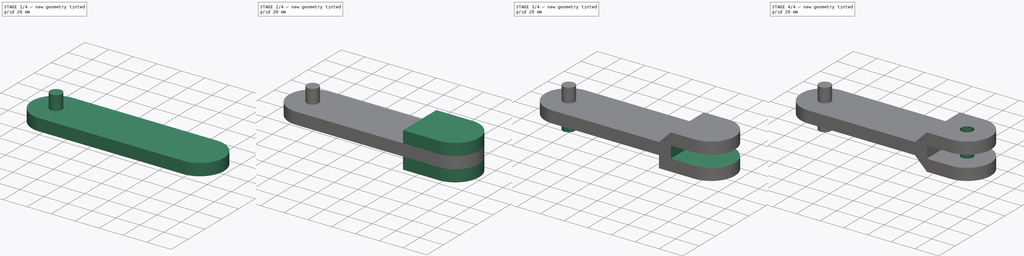
[diagram: build sequence overview — one tinted view per stage of 4, left to right]
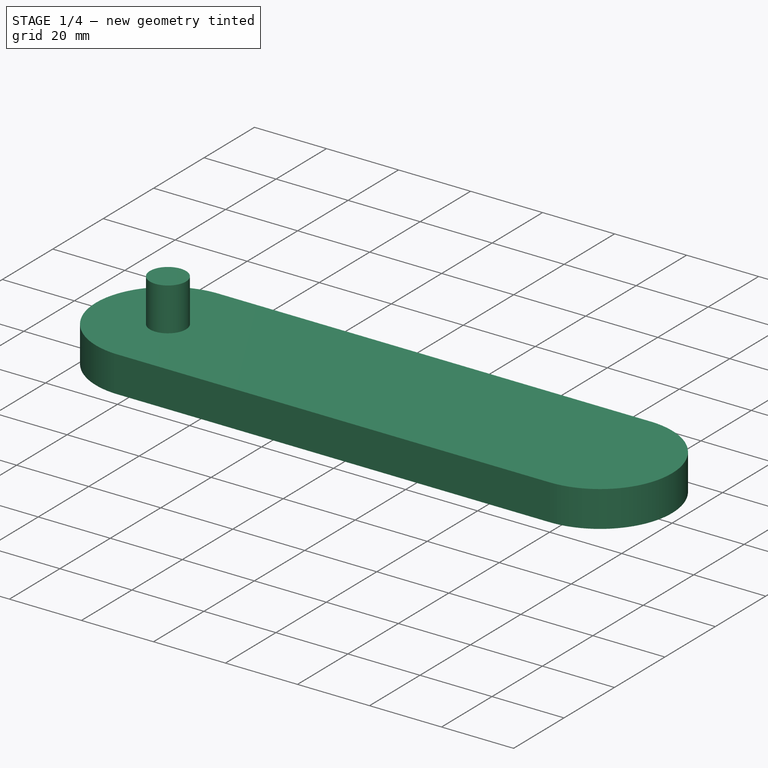
[diagram: stage 1 of 4 — iso view after this stage's code; geometry added in this stage tinted green]
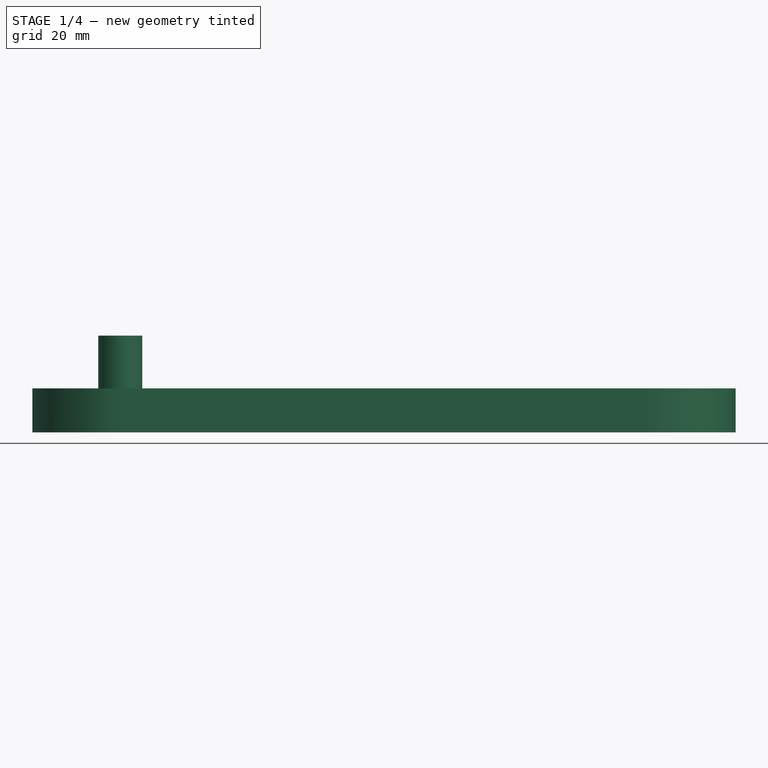
[diagram: stage 1 of 4 — front view after this stage's code; geometry added in this stage tinted green]
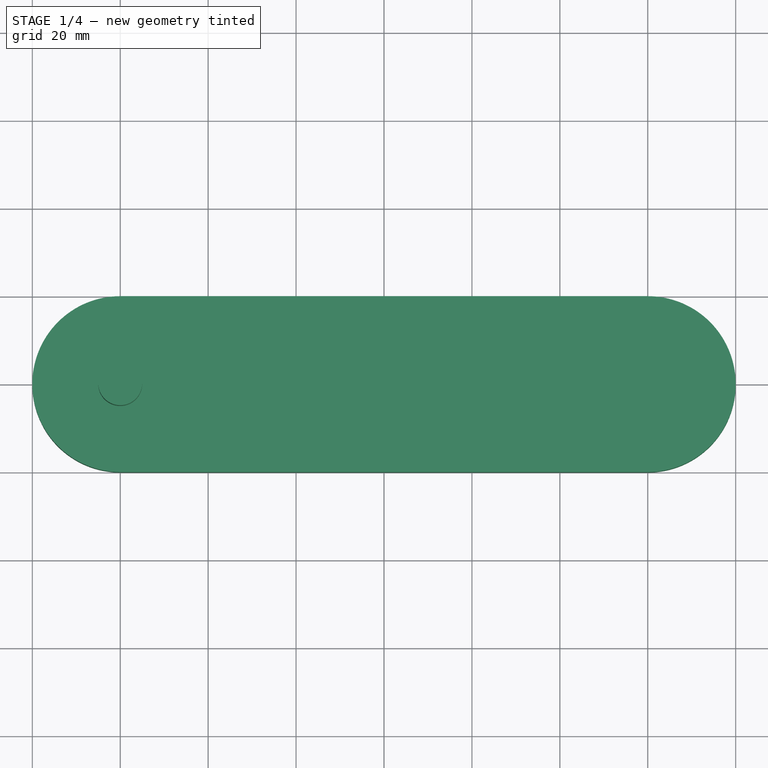
[diagram: stage 1 of 4 — top view after this stage's code; geometry added in this stage tinted green]
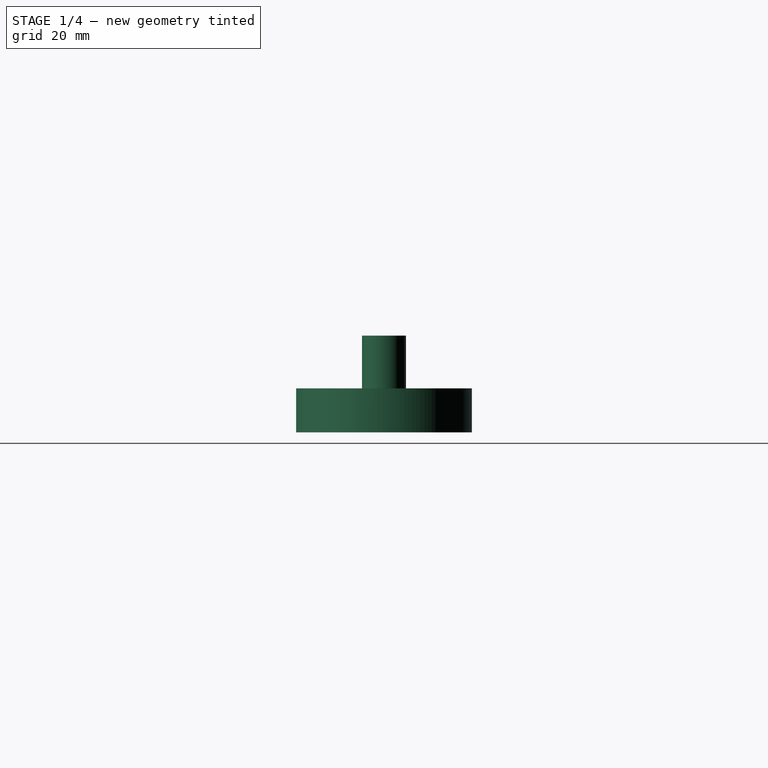
[diagram: stage 1 of 4 — right view after this stage's code; geometry added in this stage tinted green]
FCSTD DOCUMENT  (FreeCAD 0.18.4R)
Label: link_2
License: All rights reserved
LicenseURL: http://en.wikipedia.org/wiki/All_rights_reserved
objects: Sketcher::SketchObject×6, PartDesign::Pad×3, PartDesign::Mirrored×3, PartDesign::Pocket×3, PartDesign::Body×1
note: 22 computed .brp shape members not serialized (recipe doc carries the construction recipe); baked Part::Feature solids carry a one-line shape summary decoded from their .brp

FEATURE [Sketcher::SketchObject] Sketch
  MapMode = 5
  Support = -> [XY_Plane]
  sketch-geometry (4):
    g0: ArcOfCircle CenterX=0 CenterY=0 CenterZ=0 NormalX=0 NormalY=0 NormalZ=1 AngleXU=0 Radius=20 StartAngle=1.5708 EndAngle=4.71239
    g1: ArcOfCircle CenterX=120 CenterY=0 CenterZ=0 NormalX=0 NormalY=0 NormalZ=1 AngleXU=0 Radius=20 StartAngle=4.71239 EndAngle=7.85398
    g2: LineSegment StartX=1.2e-15 StartY=20 StartZ=0 EndX=120 EndY=20 EndZ=0
    g3: LineSegment StartX=-3.7e-15 StartY=-20 StartZ=0 EndX=120 EndY=-20 EndZ=0
  constraints (13):
    c: Radius(g0) = 20
    c: DistanceX(g0,g-1) = 0
    c: DistanceX(g-1,g0) = 0
    c: Coincident(g0,g-1)
    c: DistanceY(g0,g1) = 0
    c: DistanceX(g0,g1) = 120
    c: Radius(g1) = 20
    c: DistanceX(g1,g1) = 0
    c: DistanceY(g1,g1) = 40
    c: Coincident(g0,g2)
    c: Coincident(g2,g1)
    c: Coincident(g3,g1)
    c: Coincident(g3,g0)
FEATURE [PartDesign::Pad] Pad
  Length = 10
  Length2 = 100
  Midplane = true
  Profile = -> Sketch
  Type = 0
FEATURE [Sketcher::SketchObject] Sketch001
  MapMode = 5
  Placement = pos=(0,0,5) rot=(0,0,1;0rad)
  Support = -> [Pad]
  sketch-geometry (1):
    g0: Circle CenterX=0 CenterY=0 CenterZ=0 NormalX=0 NormalY=0 NormalZ=1 AngleXU=0 Radius=5
  constraints (2):
    c: Coincident(g0,g-1)
    c: Radius(g0) = 5
FEATURE [PartDesign::Pad] Pad001
  BaseFeature = -> Pad
  Length = 12
  Length2 = 100
  Profile = -> Sketch001
  Type = 0
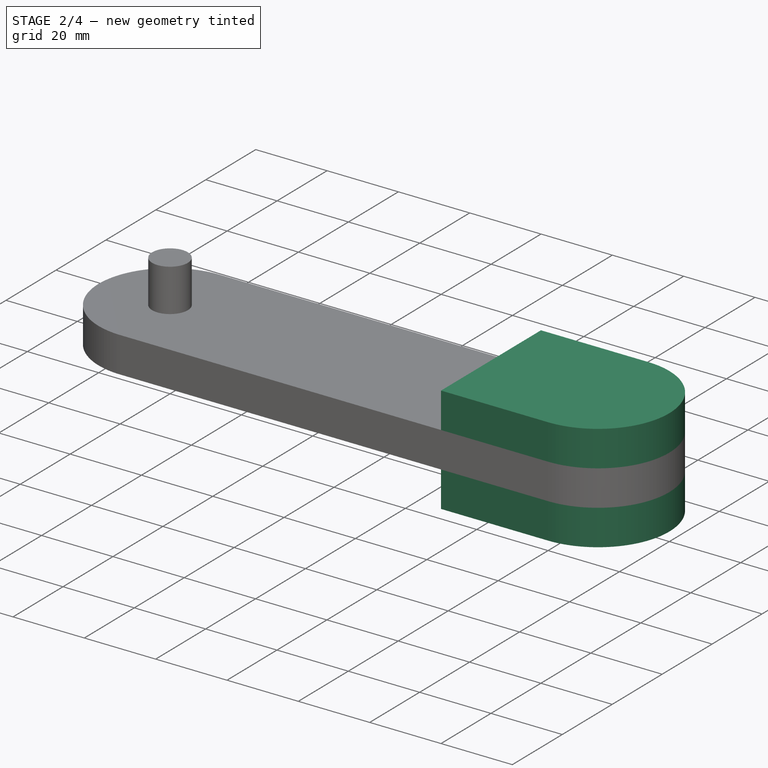
[diagram: stage 2 of 4 — iso view after this stage's code; geometry added in this stage tinted green]
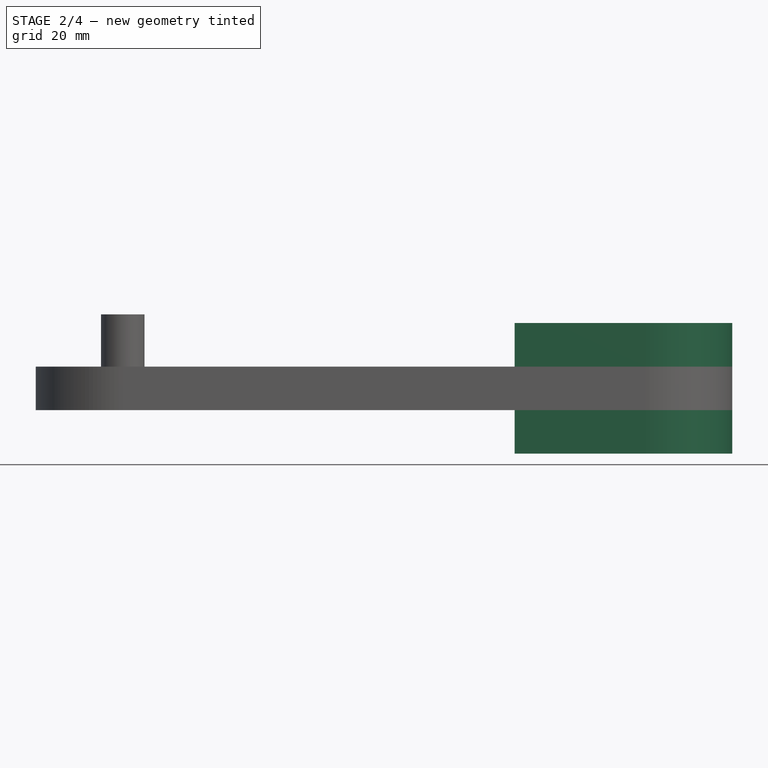
[diagram: stage 2 of 4 — front view after this stage's code; geometry added in this stage tinted green]
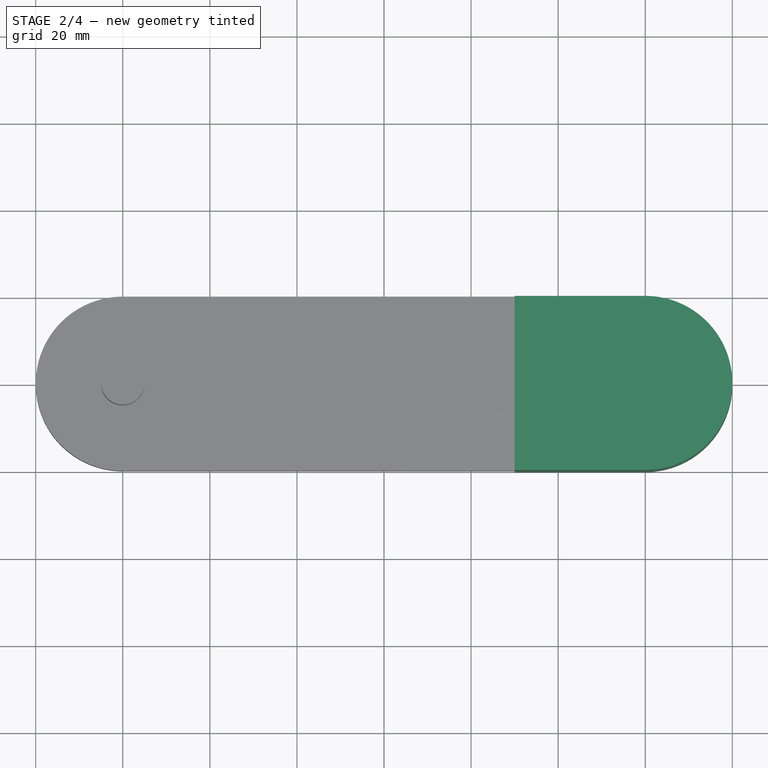
[diagram: stage 2 of 4 — top view after this stage's code; geometry added in this stage tinted green]
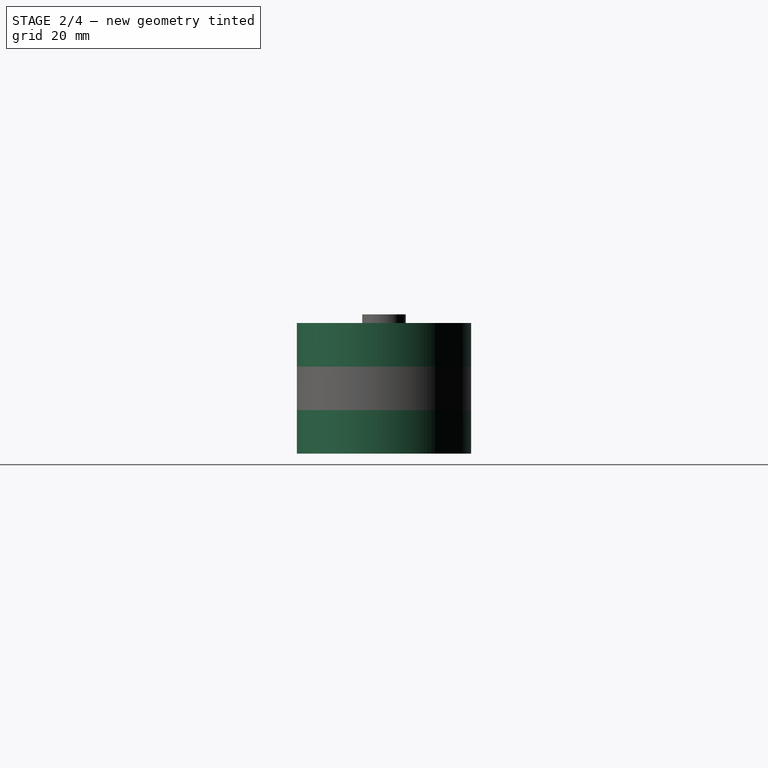
[diagram: stage 2 of 4 — right view after this stage's code; geometry added in this stage tinted green]
FEATURE [Sketcher::SketchObject] Sketch002
  MapMode = 5
  Placement = pos=(0,0,5) rot=(0,0,1;0rad)
  Support = -> [Pad001]
  sketch-geometry (4):
    g0: LineSegment StartX=90 StartY=20 StartZ=0 EndX=120 EndY=20 EndZ=0
    g1: LineSegment StartX=120 StartY=-20 StartZ=0 EndX=90 EndY=-20 EndZ=0
    g2: LineSegment StartX=90 StartY=-20 StartZ=0 EndX=90 EndY=20 EndZ=0
    g3: ArcOfCircle CenterX=120 CenterY=0 CenterZ=0 NormalX=0 NormalY=0 NormalZ=1 AngleXU=0 Radius=20 StartAngle=4.71239 EndAngle=7.85398
  constraints (13):
    c: Coincident(g1,g2)
    c: Coincident(g2,g0)
    c: Horizontal(g0)
    c: Horizontal(g1)
    c: Vertical(g2)
    c: DistanceY(g1,g0) = 40
    c: Radius(g3) = 20
    c: Coincident(g3,g1)
    c: Coincident(g0,g3)
    c: DistanceX(g0,g3) = 30
    c: DistanceX(g-1,g3) = 120
    c: DistanceY(g3,g-1) = 0
    c: DistanceY(g3,g0) = 20
FEATURE [PartDesign::Pad] Pad002
  BaseFeature = -> Pad001
  Length = 10
  Length2 = 100
  Profile = -> Sketch002
  Type = 0
FEATURE [PartDesign::Mirrored] Mirrored
  BaseFeature = -> Pad002
  MirrorPlane = -> XY_Plane
  Originals = -> [Pad002]
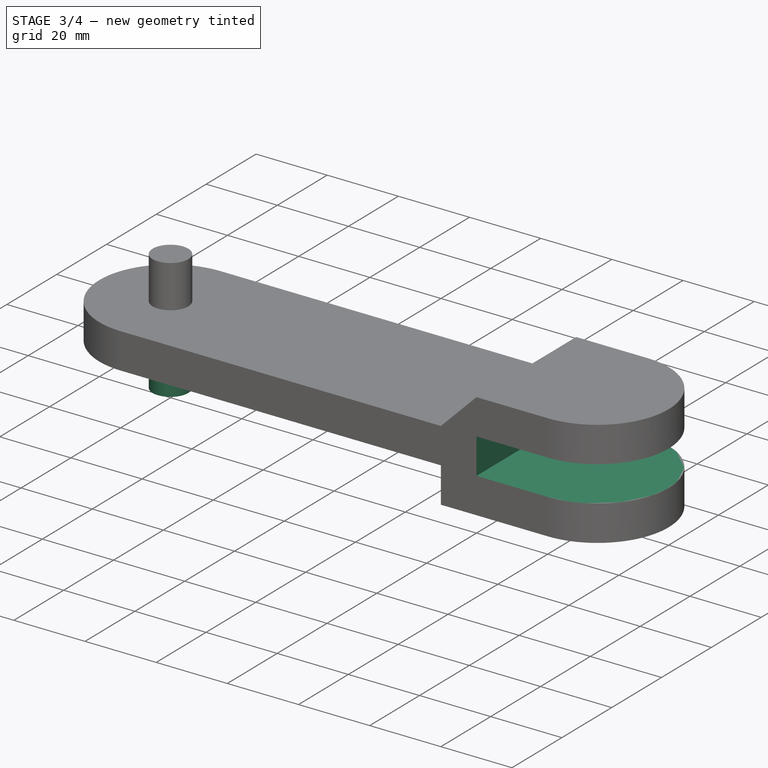
[diagram: stage 3 of 4 — iso view after this stage's code; geometry added in this stage tinted green]
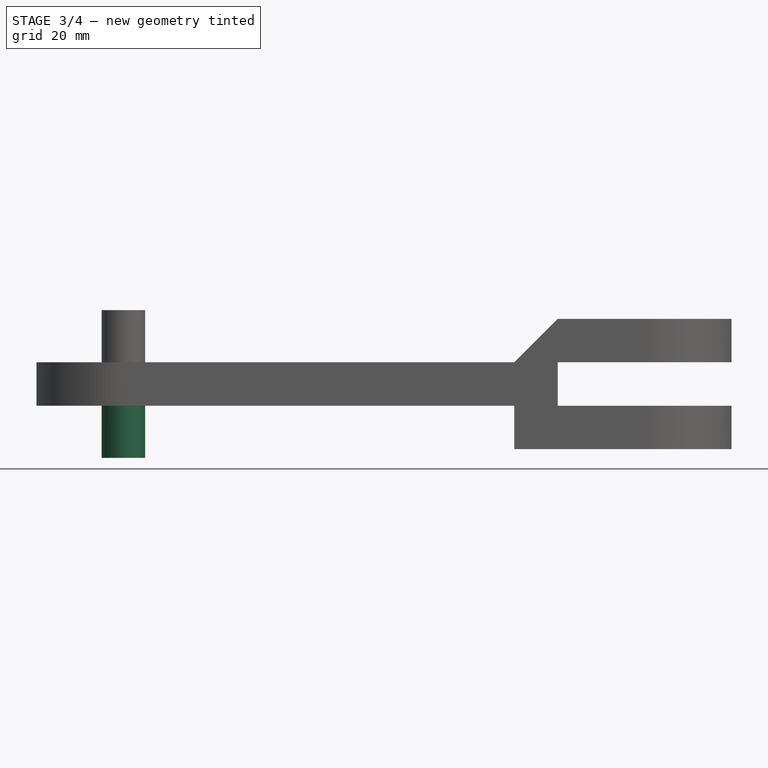
[diagram: stage 3 of 4 — front view after this stage's code; geometry added in this stage tinted green]
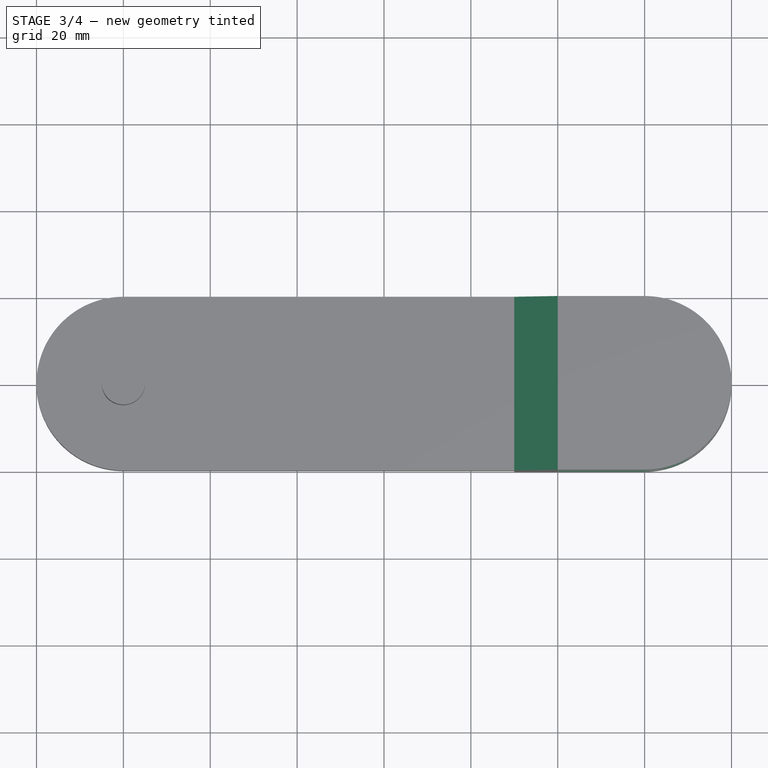
[diagram: stage 3 of 4 — top view after this stage's code; geometry added in this stage tinted green]
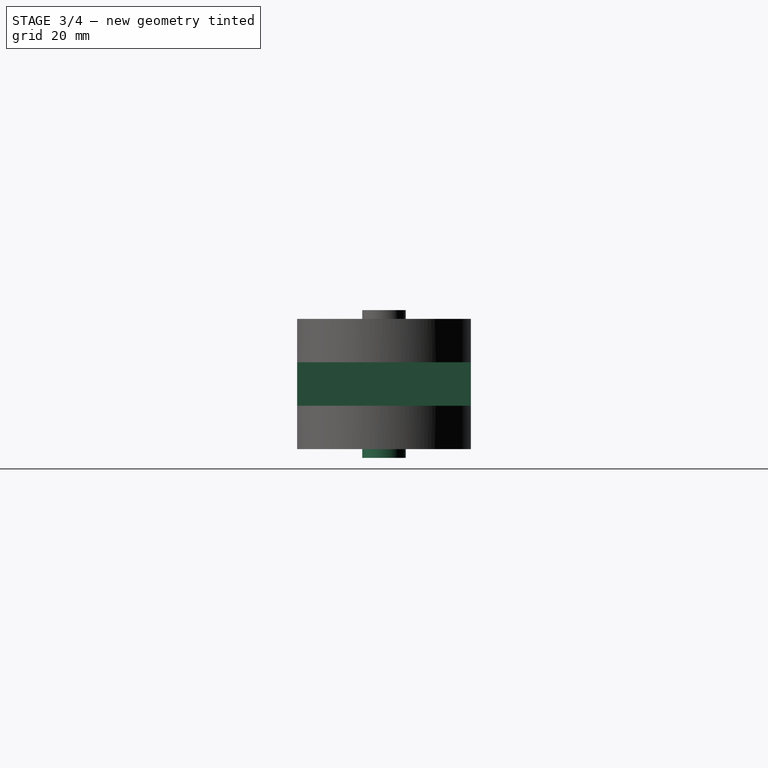
[diagram: stage 3 of 4 — right view after this stage's code; geometry added in this stage tinted green]
FEATURE [PartDesign::Mirrored] Mirrored001
  BaseFeature = -> Mirrored
  MirrorPlane = -> XY_Plane
  Originals = -> [Pad001]
FEATURE [Sketcher::SketchObject] Sketch003
  MapMode = 5
  Placement = pos=(4.0506e-12,-20,0) rot=(1,0,0;1.5708rad)
  Support = -> [Mirrored001]
  sketch-geometry (4):
    g0: LineSegment StartX=100 StartY=5 StartZ=0 EndX=140 EndY=5 EndZ=0
    g1: LineSegment StartX=140 StartY=5 StartZ=0 EndX=140 EndY=-5 EndZ=0
    g2: LineSegment StartX=140 StartY=-5 StartZ=0 EndX=100 EndY=-5 EndZ=0
    g3: LineSegment StartX=100 StartY=-5 StartZ=0 EndX=100 EndY=5 EndZ=0
  constraints (12):
    c: Coincident(g0,g1)
    c: Coincident(g1,g2)
    c: Coincident(g2,g3)
    c: Coincident(g3,g0)
    c: Horizontal(g0)
    c: Horizontal(g2)
    c: Vertical(g1)
    c: Vertical(g3)
    c: DistanceY(g2,g0) = 10
    c: DistanceX(g2,g1) = 40
    c: DistanceY(g2,g-1) = 5
    c: DistanceX(g-1,g2) = 100
FEATURE [PartDesign::Pocket] Pocket
  BaseFeature = -> Mirrored001
  Length = 80
  Length2 = 100
  Midplane = true
  Profile = -> Sketch003
  Type = 0
FEATURE [Sketcher::SketchObject] Sketch004
  ExternalGeometry = -> [Pocket]
  MapMode = 5
  Placement = pos=(0,-20,0) rot=(1,0,0;1.5708rad)
  Support = -> [Pocket]
  sketch-geometry (3):
    g0: LineSegment StartX=90 StartY=15 StartZ=0 EndX=90 EndY=5 EndZ=0
    g1: LineSegment StartX=90 StartY=15 StartZ=0 EndX=100 EndY=15 EndZ=0
    g2: LineSegment StartX=90 StartY=5 StartZ=0 EndX=100 EndY=15 EndZ=0
  constraints (8):
    c: DistanceX(g-3,g0) = 0
    c: DistanceY(g0,g0) = 10
    c: Coincident(g0,g1)
    c: DistanceX(g0,g1) = 10
    c: DistanceY(g1,g0) = 0
    c: Coincident(g2,g0)
    c: Coincident(g2,g1)
    c: Coincident(g0,g-3)
FEATURE [PartDesign::Pocket] Pocket001
  BaseFeature = -> Pocket
  Length = 40
  Length2 = 100
  Profile = -> Sketch004
  Type = 0
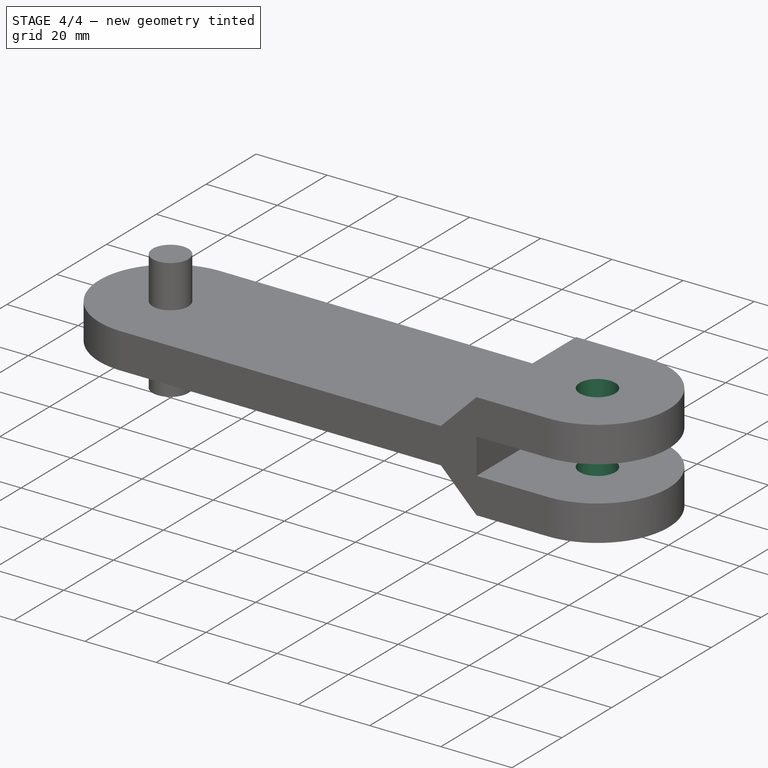
[diagram: stage 4 of 4 — iso view after this stage's code; geometry added in this stage tinted green]
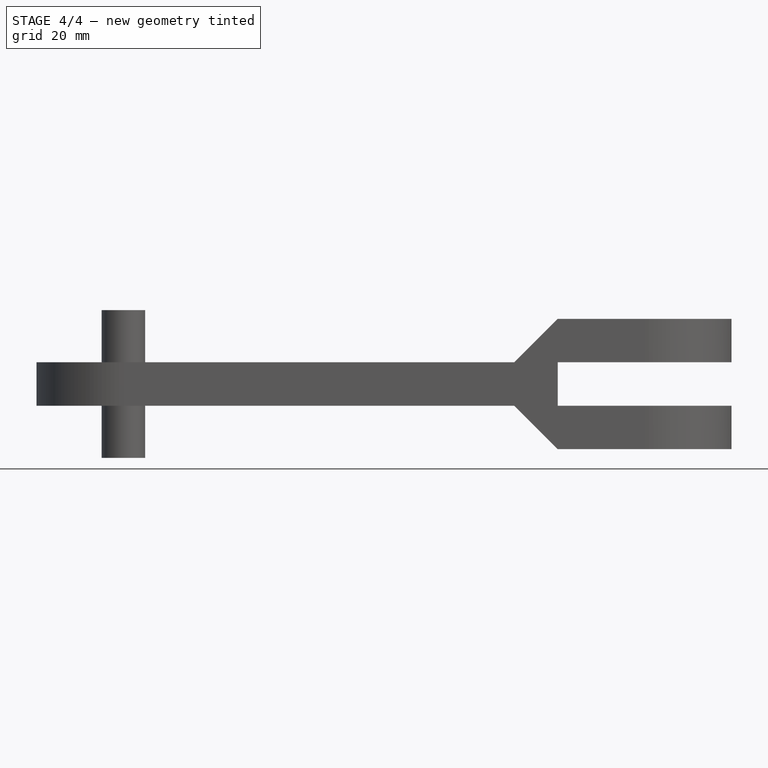
[diagram: stage 4 of 4 — front view after this stage's code; geometry added in this stage tinted green]
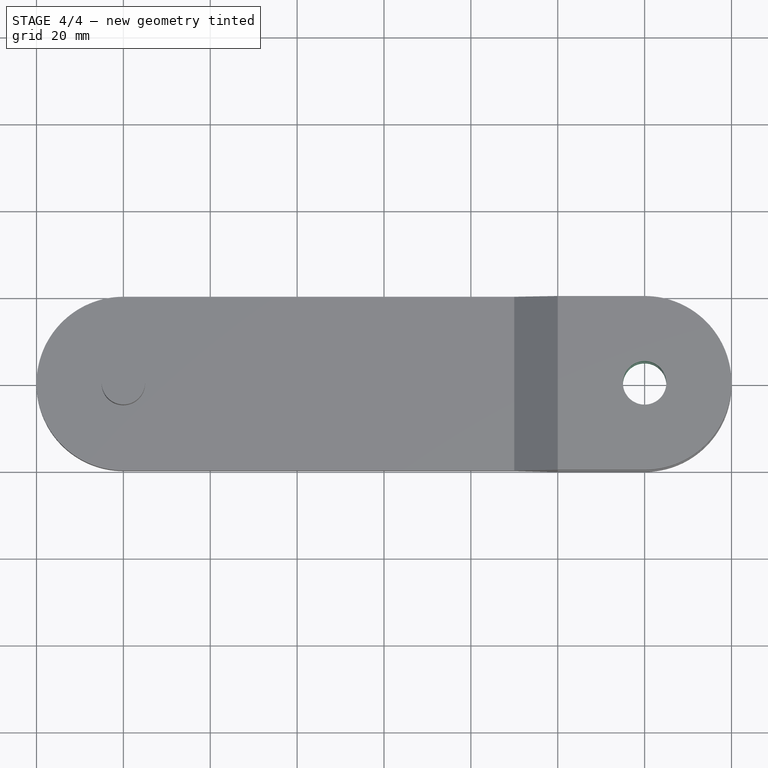
[diagram: stage 4 of 4 — top view after this stage's code; geometry added in this stage tinted green]
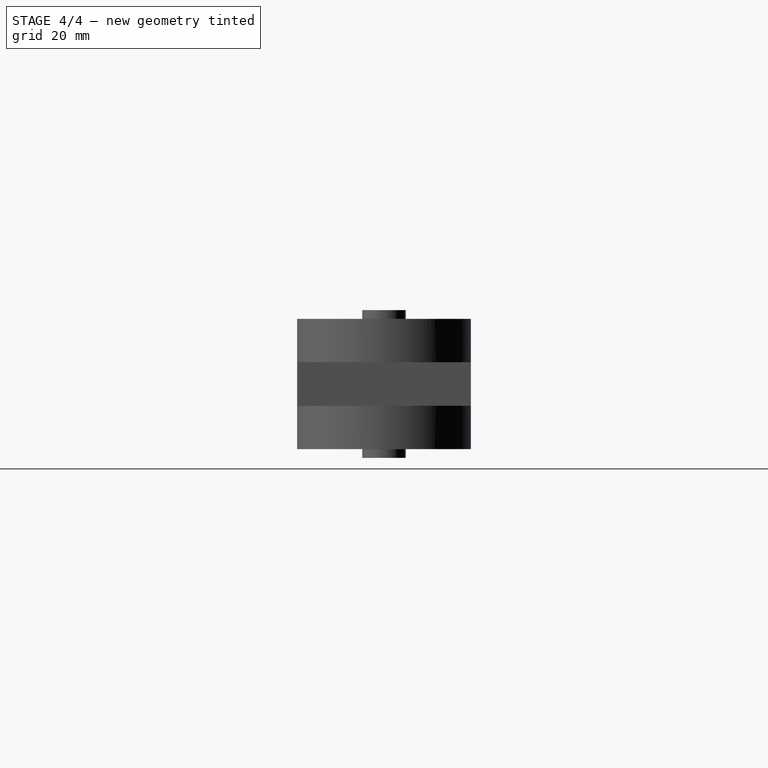
[diagram: stage 4 of 4 — right view after this stage's code; geometry added in this stage tinted green]
FEATURE [PartDesign::Mirrored] Mirrored002
  BaseFeature = -> Pocket001
  MirrorPlane = -> XY_Plane
  Originals = -> [Pocket001]
FEATURE [Sketcher::SketchObject] Sketch005
  MapMode = 5
  Placement = pos=(0,0,15) rot=(0,0,1;0rad)
  Support = -> [Mirrored002]
  sketch-geometry (1):
    g0: Circle CenterX=120 CenterY=0 CenterZ=0 NormalX=0 NormalY=0 NormalZ=1 AngleXU=0 Radius=5
  constraints (3):
    c: DistanceY(g-1,g0) = 0
    c: DistanceX(g-1,g0) = 120
    c: Radius(g0) = 5
FEATURE [PartDesign::Pocket] Pocket002
  BaseFeature = -> Mirrored002
  Length = 30
  Length2 = 100
  Profile = -> Sketch005
  Type = 0
FEATURE [PartDesign::Body] Body
  Group = -> [Sketch,Pad,Sketch001,Pad001,Sketch002,Pad002,Mirrored,Mirrored001,Sketch003,Pocket,Sketch004,Pocket001,Mirrored002,Sketch005,Pocket002]
  Origin = -> Origin
  Tip = -> Pocket002
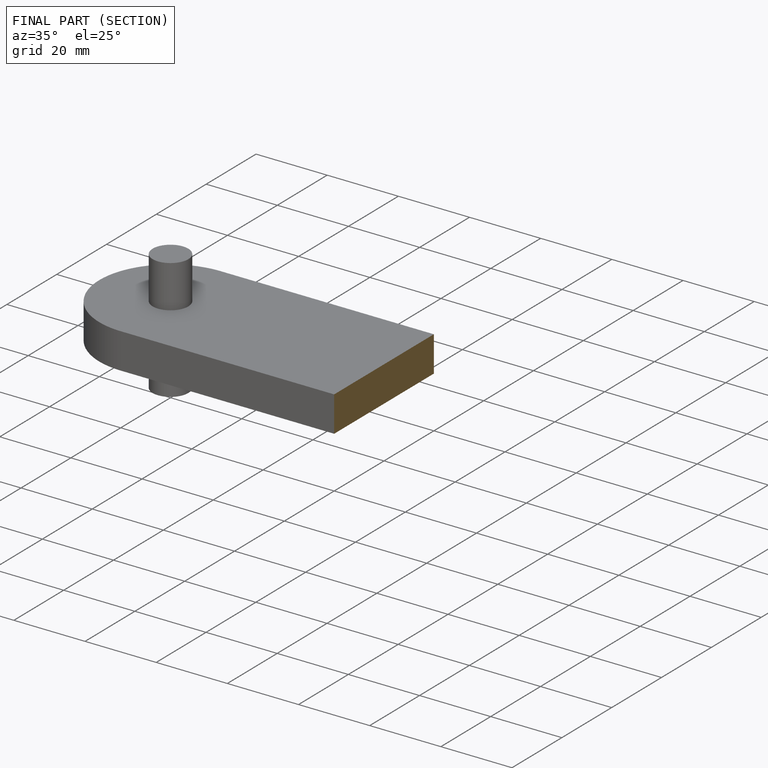
[diagram: finished part — half-section view (interior)]
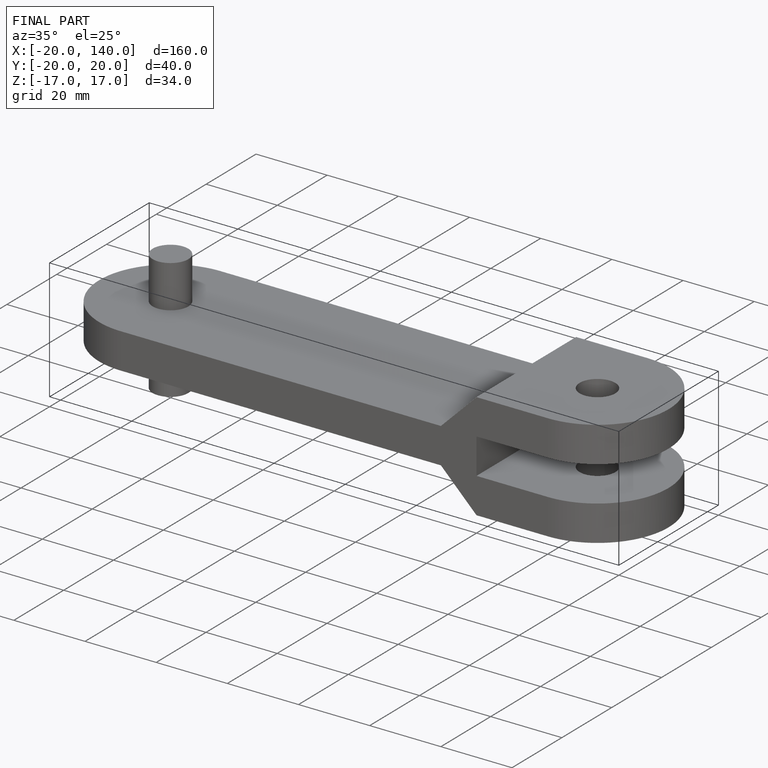
[diagram: finished part — iso view with bounding-box wireframe]
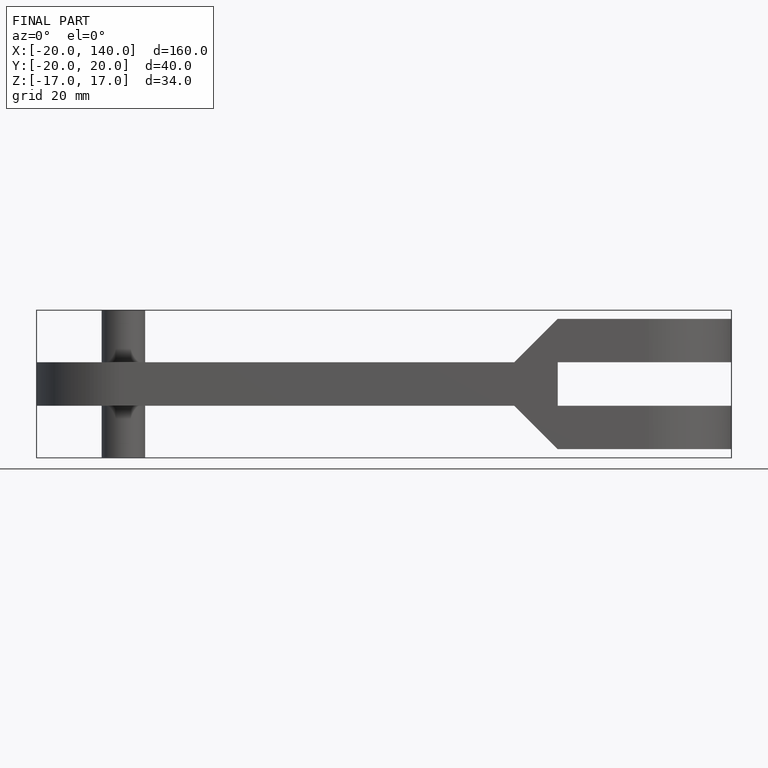
[diagram: finished part — front view with bounding-box wireframe]
